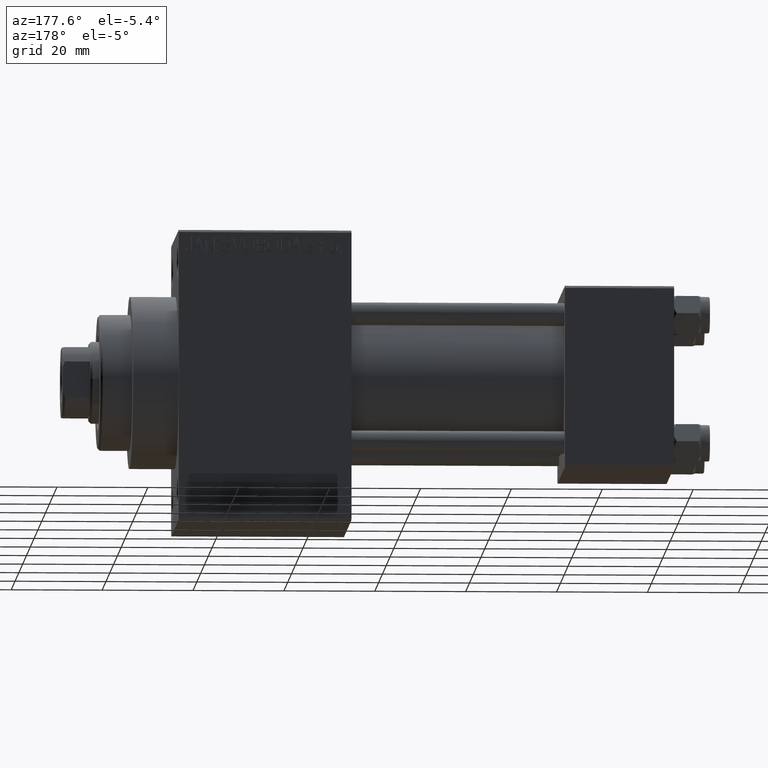
[diagram: clean part render]
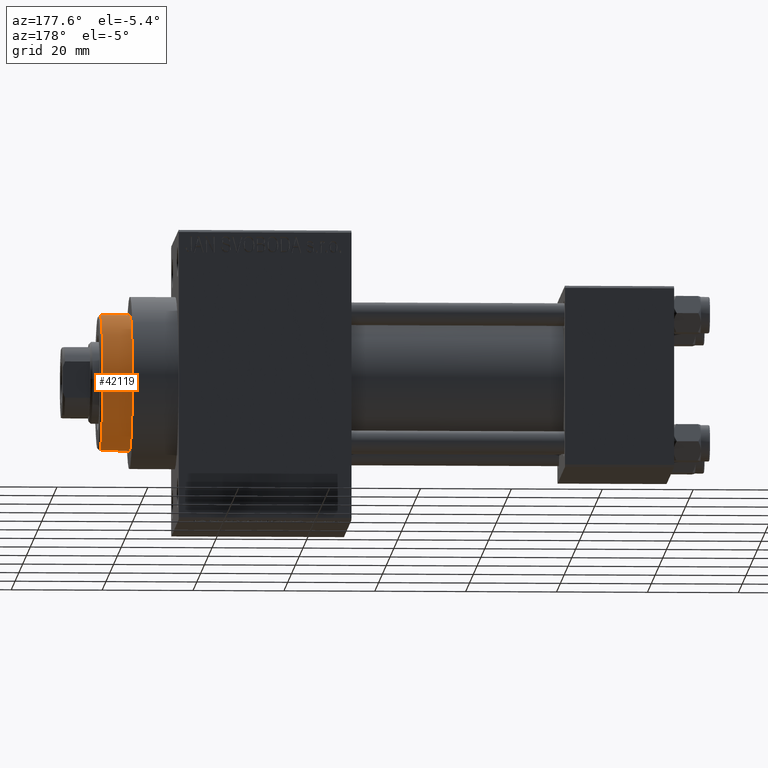
[diagram: same view with one face highlighted and labeled with its STEP entity id]
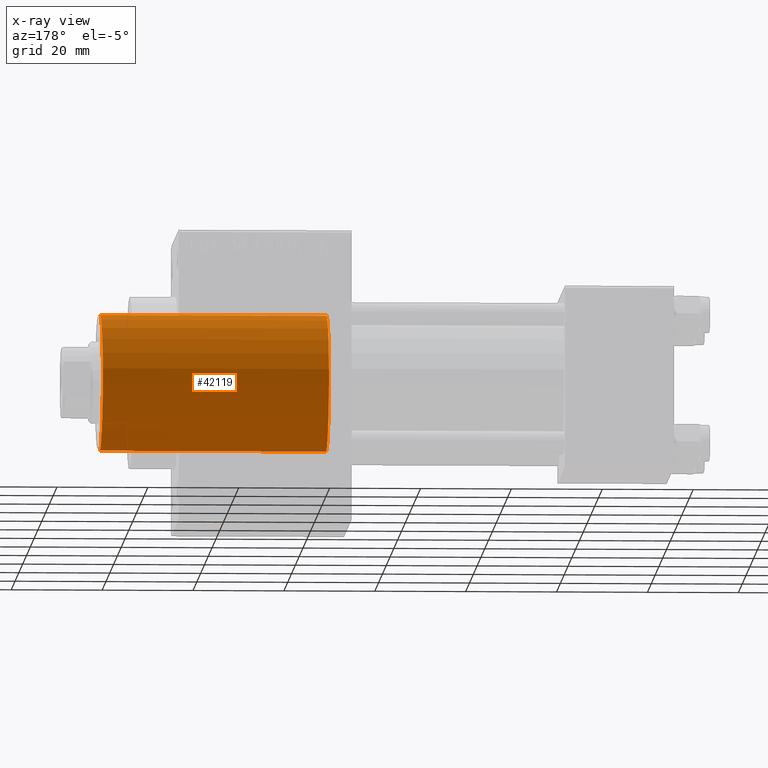
[diagram: x-ray of the same camera — body ghosted, the highlighted face saturated]
A machine part, auxiliary view. The second image highlights one B-rep face of the part: STEP entity #42119.
The next image is the same camera in x-ray: the body ghosted, the highlighted face saturated — about 1% of this face is hidden behind the body in this view.
In plain terms, the highlighted cylindrical surface (partial cylindrical patch) has radius 15 mm, axis along (-1, 0, 0).
Its self-contained STEP definition (entity closure, byte-faithful):
#1038 = ORIENTED_EDGE ( 'NONE', *, *, #27530, .F. ) ;
#1072 = CIRCLE ( 'NONE', #17793, 15.00000000000000000 ) ;
#2178 = DIRECTION ( 'NONE',  ( 1.000000000000000000, 0.000000000000000000, 0.000000000000000000 ) ) ;
#2355 = AXIS2_PLACEMENT_3D ( 'NONE', #45248, #38354, #2178 ) ;
#5946 = VERTEX_POINT ( 'NONE', #19450 ) ;
#6262 = CARTESIAN_POINT ( 'NONE',  ( 15.00000000000000000, 1.836970198721029589E-15, 49.75999999999998380 ) ) ;
#6711 = VERTEX_POINT ( 'NONE', #6262 ) ;
#8622 = DIRECTION ( 'NONE',  ( 1.000000000000000000, 0.000000000000000000, 0.000000000000000000 ) ) ;
#9605 = EDGE_CURVE ( 'NONE', #31468, #32749, #27921, .T. ) ;
#10110 = ORIENTED_EDGE ( 'NONE', *, *, #9605, .T. ) ;
#12040 = LINE ( 'NONE', #44855, #18311 ) ;
#12745 = DIRECTION ( 'NONE',  ( -0.000000000000000000, -0.000000000000000000, -1.000000000000000000 ) ) ;
#13188 = CARTESIAN_POINT ( 'NONE',  ( -15.00000000000000000, 0.000000000000000000, 0.000000000000000000 ) ) ;
#16748 = CARTESIAN_POINT ( 'NONE',  ( -15.00000000000000000, 0.000000000000000000, 43.25999999999999801 ) ) ;
#17793 = AXIS2_PLACEMENT_3D ( 'NONE', #38981, #44538, #8622 ) ;
#18311 = VECTOR ( 'NONE', #12745, 1000.000000000000000 ) ;
#19450 = CARTESIAN_POINT ( 'NONE',  ( 15.00000000000000000, 1.836970198721029589E-15, 0.000000000000000000 ) ) ;
#26764 = VECTOR ( 'NONE', #42234, 1000.000000000000000 ) ;
#27530 = EDGE_CURVE ( 'NONE', #6711, #5946, #12040, .T. ) ;
#27816 = EDGE_LOOP ( 'NONE', ( #1038, #43746, #10110, #31009 ) ) ;
#27921 = LINE ( 'NONE', #16748, #26764 ) ;
#29464 = DIRECTION ( 'NONE',  ( -1.000000000000000000, 0.000000000000000000, 0.000000000000000000 ) ) ;
#31009 = ORIENTED_EDGE ( 'NONE', *, *, #46864, .T. ) ;
#31468 = VERTEX_POINT ( 'NONE', #39538 ) ;
#32330 = CARTESIAN_POINT ( 'NONE',  ( 0.000000000000000000, 0.000000000000000000, 43.25999999999999801 ) ) ;
#32749 = VERTEX_POINT ( 'NONE', #13188 ) ;
#36610 = DIRECTION ( 'NONE',  ( -0.000000000000000000, -0.000000000000000000, -1.000000000000000000 ) ) ;
#38354 = DIRECTION ( 'NONE',  ( 0.000000000000000000, 0.000000000000000000, 1.000000000000000000 ) ) ;
#38624 = EDGE_CURVE ( 'NONE', #6711, #31468, #1072, .T. ) ;
#38831 = CIRCLE ( 'NONE', #2355, 15.00000000000000000 ) ;
#38981 = CARTESIAN_POINT ( 'NONE',  ( 0.000000000000000000, 0.000000000000000000, 49.75999999999998380 ) ) ;
#39538 = CARTESIAN_POINT ( 'NONE',  ( -15.00000000000000000, 0.000000000000000000, 49.75999999999998380 ) ) ;
#39956 = CYLINDRICAL_SURFACE ( 'NONE', #43012, 15.00000000000000000 ) ;
#42119 = ADVANCED_FACE ( 'NONE', ( #43049 ), #39956, .T. ) ;
#42234 = DIRECTION ( 'NONE',  ( -0.000000000000000000, -0.000000000000000000, -1.000000000000000000 ) ) ;
#43012 = AXIS2_PLACEMENT_3D ( 'NONE', #32330, #36610, #29464 ) ;
#43049 = FACE_OUTER_BOUND ( 'NONE', #27816, .T. ) ;
#43746 = ORIENTED_EDGE ( 'NONE', *, *, #38624, .T. ) ;
#44538 = DIRECTION ( 'NONE',  ( 0.000000000000000000, 0.000000000000000000, -1.000000000000000000 ) ) ;
#44855 = CARTESIAN_POINT ( 'NONE',  ( 15.00000000000000000, 1.836970198721029589E-15, 43.25999999999999801 ) ) ;
#45248 = CARTESIAN_POINT ( 'NONE',  ( 0.000000000000000000, 0.000000000000000000, 0.000000000000000000 ) ) ;
#46864 = EDGE_CURVE ( 'NONE', #32749, #5946, #38831, .T. ) ;